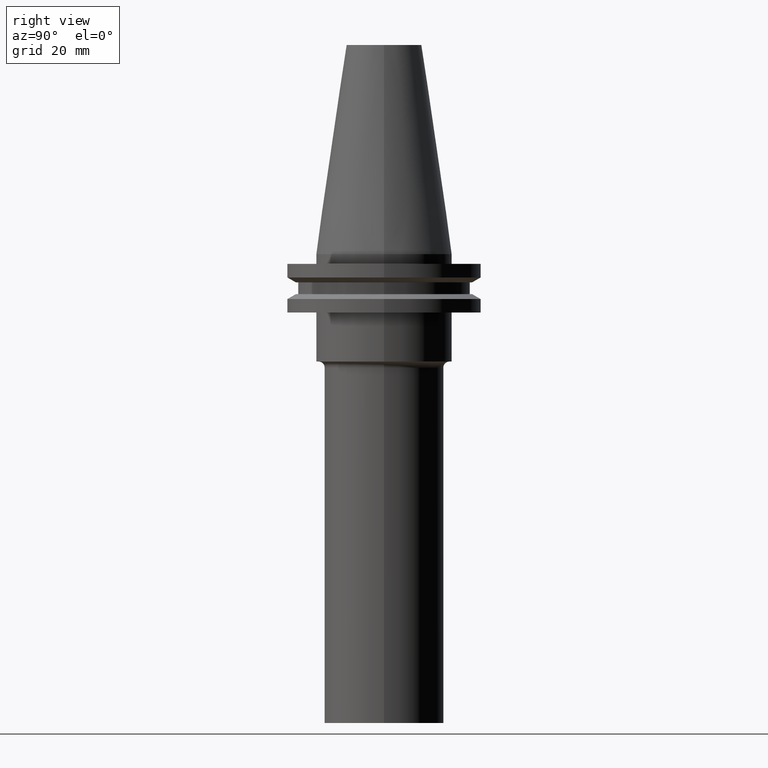
[diagram: clean part render]
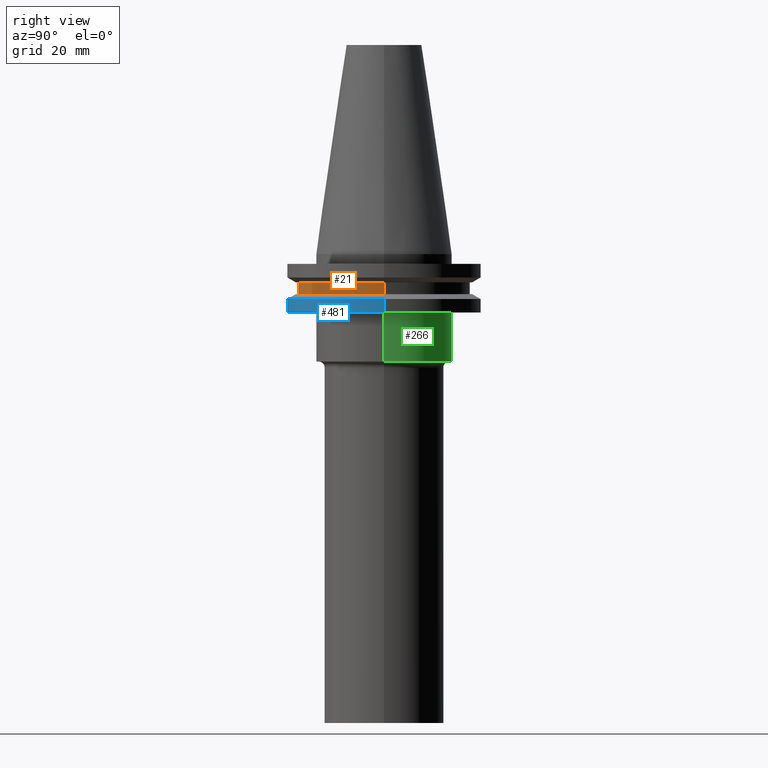
[diagram: same view with three faces highlighted in distinct colors, each labeled with its STEP entity id]
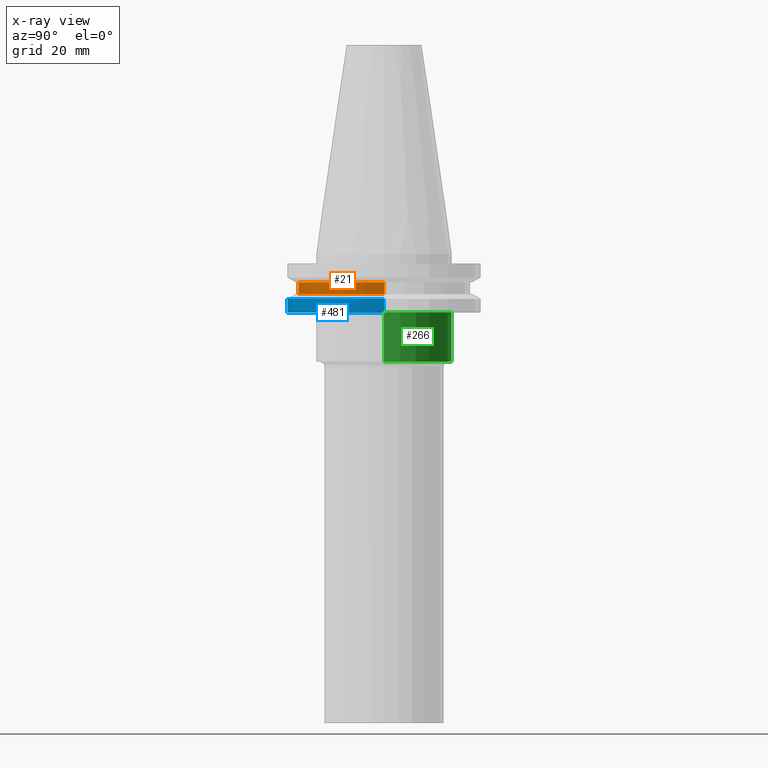
[diagram: x-ray of the same camera — body ghosted, the three highlighted faces saturated]
A machine part, right view with three faces highlighted in distinct colors.
The next image is the same camera in x-ray (body ghosted, the three faces saturated) — at least one of them is partly hidden behind the body in this view.
Their STEP definitions:

[orange] entity #21 — the highlighted cylindrical surface (partial cylindrical patch) has radius 28.18 mm, axis along (-0, -0, 1).
#19 = LINE ( 'NONE', #609, #777 ) ;
#21 = ADVANCED_FACE ( 'NONE', ( #445 ), #665, .T. ) ;
#74 = DIRECTION ( 'NONE',  ( 1.000000000000000000, 0.000000000000000000, 0.000000000000000000 ) ) ;
#89 = VERTEX_POINT ( 'NONE', #442 ) ;
#97 = CARTESIAN_POINT ( 'NONE',  ( 0.000000000000000000, 0.000000000000000000, -13.05499999999999794 ) ) ;
#104 = DIRECTION ( 'NONE',  ( 1.000000000000000000, 0.000000000000000000, 0.000000000000000000 ) ) ;
#127 = CARTESIAN_POINT ( 'NONE',  ( -28.17999999999999972, 3.451054679997241634E-15, -13.05499999999999794 ) ) ;
#178 = CARTESIAN_POINT ( 'NONE',  ( -28.17999999999999972, 3.451054679997241634E-15, 68.25000000000000000 ) ) ;
#201 = AXIS2_PLACEMENT_3D ( 'NONE', #473, #643, #691 ) ;
#208 = ORIENTED_EDGE ( 'NONE', *, *, #296, .F. ) ;
#228 = CIRCLE ( 'NONE', #201, 28.17999999999999972 ) ;
#296 = EDGE_CURVE ( 'NONE', #579, #638, #228, .T. ) ;
#327 = DIRECTION ( 'NONE',  ( -0.000000000000000000, -0.000000000000000000, 1.000000000000000000 ) ) ;
#333 = VERTEX_POINT ( 'NONE', #127 ) ;
#352 = EDGE_CURVE ( 'NONE', #89, #638, #19, .T. ) ;
#360 = CIRCLE ( 'NONE', #590, 28.17999999999999972 ) ;
#362 = AXIS2_PLACEMENT_3D ( 'NONE', #368, #498, #74 ) ;
#368 = CARTESIAN_POINT ( 'NONE',  ( 0.000000000000000000, 0.000000000000000000, 68.25000000000000000 ) ) ;
#380 = ORIENTED_EDGE ( 'NONE', *, *, #444, .T. ) ;
#398 = DIRECTION ( 'NONE',  ( -0.000000000000000000, -0.000000000000000000, 1.000000000000000000 ) ) ;
#408 = ORIENTED_EDGE ( 'NONE', *, *, #720, .F. ) ;
#442 = CARTESIAN_POINT ( 'NONE',  ( 28.17999999999999972, 0.000000000000000000, -13.05499999999999794 ) ) ;
#444 = EDGE_CURVE ( 'NONE', #333, #89, #360, .T. ) ;
#445 = FACE_OUTER_BOUND ( 'NONE', #767, .T. ) ;
#454 = CARTESIAN_POINT ( 'NONE',  ( -28.17999999999999972, 3.451054679997241634E-15, -9.204999999999991189 ) ) ;
#473 = CARTESIAN_POINT ( 'NONE',  ( 0.000000000000000000, 0.000000000000000000, -9.204999999999991189 ) ) ;
#475 = ORIENTED_EDGE ( 'NONE', *, *, #352, .T. ) ;
#498 = DIRECTION ( 'NONE',  ( -0.000000000000000000, -0.000000000000000000, 1.000000000000000000 ) ) ;
#538 = DIRECTION ( 'NONE',  ( -0.000000000000000000, -0.000000000000000000, 1.000000000000000000 ) ) ;
#579 = VERTEX_POINT ( 'NONE', #454 ) ;
#590 = AXIS2_PLACEMENT_3D ( 'NONE', #97, #398, #104 ) ;
#607 = CARTESIAN_POINT ( 'NONE',  ( 28.17999999999999972, 0.000000000000000000, -9.204999999999991189 ) ) ;
#609 = CARTESIAN_POINT ( 'NONE',  ( 28.17999999999999972, 0.000000000000000000, 68.25000000000000000 ) ) ;
#638 = VERTEX_POINT ( 'NONE', #607 ) ;
#643 = DIRECTION ( 'NONE',  ( -0.000000000000000000, -0.000000000000000000, 1.000000000000000000 ) ) ;
#665 = CYLINDRICAL_SURFACE ( 'NONE', #362, 28.17999999999999972 ) ;
#691 = DIRECTION ( 'NONE',  ( 1.000000000000000000, 0.000000000000000000, 0.000000000000000000 ) ) ;
#719 = VECTOR ( 'NONE', #538, 1000.000000000000000 ) ;
#720 = EDGE_CURVE ( 'NONE', #333, #579, #735, .T. ) ;
#735 = LINE ( 'NONE', #178, #719 ) ;
#767 = EDGE_LOOP ( 'NONE', ( #408, #380, #475, #208 ) ) ;
#777 = VECTOR ( 'NONE', #327, 1000.000000000000000 ) ;

[blue] entity #481 — the highlighted cylindrical surface (partial cylindrical patch) has radius 31.75 mm, axis along (-0, -0, 1).
#29 = VECTOR ( 'NONE', #539, 1000.000000000000000 ) ;
#32 = CYLINDRICAL_SURFACE ( 'NONE', #666, 31.75000000000000000 ) ;
#37 = DIRECTION ( 'NONE',  ( 1.000000000000000000, 0.000000000000000000, 0.000000000000000000 ) ) ;
#77 = ORIENTED_EDGE ( 'NONE', *, *, #501, .F. ) ;
#108 = ORIENTED_EDGE ( 'NONE', *, *, #170, .T. ) ;
#137 = VERTEX_POINT ( 'NONE', #341 ) ;
#159 = CARTESIAN_POINT ( 'NONE',  ( 31.74999999999999289, 0.000000000000000000, -19.04999999999999716 ) ) ;
#170 = EDGE_CURVE ( 'NONE', #526, #519, #344, .T. ) ;
#182 = ORIENTED_EDGE ( 'NONE', *, *, #393, .T. ) ;
#233 = VECTOR ( 'NONE', #694, 1000.000000000000000 ) ;
#249 = CARTESIAN_POINT ( 'NONE',  ( 0.000000000000000000, 0.000000000000000000, -19.04999999999999716 ) ) ;
#262 = CARTESIAN_POINT ( 'NONE',  ( -31.74999999999999289, 3.888253587292845687E-15, -19.04999999999999716 ) ) ;
#315 = AXIS2_PLACEMENT_3D ( 'NONE', #249, #549, #493 ) ;
#329 = VERTEX_POINT ( 'NONE', #262 ) ;
#335 = DIRECTION ( 'NONE',  ( -0.000000000000000000, -0.000000000000000000, 1.000000000000000000 ) ) ;
#341 = CARTESIAN_POINT ( 'NONE',  ( -31.75000000000000000, 3.888253587292846476E-15, -14.65472339340266572 ) ) ;
#344 = LINE ( 'NONE', #716, #29 ) ;
#351 = LINE ( 'NONE', #470, #233 ) ;
#367 = CIRCLE ( 'NONE', #611, 31.75000000000000000 ) ;
#383 = CIRCLE ( 'NONE', #315, 31.74999999999999289 ) ;
#393 = EDGE_CURVE ( 'NONE', #329, #526, #383, .T. ) ;
#465 = ORIENTED_EDGE ( 'NONE', *, *, #662, .F. ) ;
#470 = CARTESIAN_POINT ( 'NONE',  ( -31.75000000000000000, 3.888253587292846476E-15, 68.25000000000000000 ) ) ;
#474 = CARTESIAN_POINT ( 'NONE',  ( 0.000000000000000000, 0.000000000000000000, 68.25000000000000000 ) ) ;
#481 = ADVANCED_FACE ( 'NONE', ( #531 ), #32, .T. ) ;
#493 = DIRECTION ( 'NONE',  ( 1.000000000000000000, 0.000000000000000000, 0.000000000000000000 ) ) ;
#501 = EDGE_CURVE ( 'NONE', #329, #137, #351, .T. ) ;
#519 = VERTEX_POINT ( 'NONE', #766 ) ;
#526 = VERTEX_POINT ( 'NONE', #159 ) ;
#531 = FACE_OUTER_BOUND ( 'NONE', #567, .T. ) ;
#539 = DIRECTION ( 'NONE',  ( -0.000000000000000000, -0.000000000000000000, 1.000000000000000000 ) ) ;
#549 = DIRECTION ( 'NONE',  ( -0.000000000000000000, -0.000000000000000000, 1.000000000000000000 ) ) ;
#567 = EDGE_LOOP ( 'NONE', ( #77, #182, #108, #465 ) ) ;
#588 = DIRECTION ( 'NONE',  ( 1.000000000000000000, 0.000000000000000000, 0.000000000000000000 ) ) ;
#610 = CARTESIAN_POINT ( 'NONE',  ( 0.000000000000000000, 0.000000000000000000, -14.65472339340266572 ) ) ;
#611 = AXIS2_PLACEMENT_3D ( 'NONE', #610, #667, #588 ) ;
#662 = EDGE_CURVE ( 'NONE', #137, #519, #367, .T. ) ;
#666 = AXIS2_PLACEMENT_3D ( 'NONE', #474, #335, #37 ) ;
#667 = DIRECTION ( 'NONE',  ( -0.000000000000000000, -0.000000000000000000, 1.000000000000000000 ) ) ;
#694 = DIRECTION ( 'NONE',  ( -0.000000000000000000, -0.000000000000000000, 1.000000000000000000 ) ) ;
#716 = CARTESIAN_POINT ( 'NONE',  ( 31.75000000000000000, 0.000000000000000000, 68.25000000000000000 ) ) ;
#766 = CARTESIAN_POINT ( 'NONE',  ( 31.75000000000000000, 0.000000000000000000, -14.65472339340266572 ) ) ;

[green] entity #266 — the highlighted cylindrical surface (partial cylindrical patch) has radius 22.225 mm, axis along (-0, -0, 1).
#4 = DIRECTION ( 'NONE',  ( -0.000000000000000000, -0.000000000000000000, 1.000000000000000000 ) ) ;
#31 = LINE ( 'NONE', #334, #58 ) ;
#44 = CARTESIAN_POINT ( 'NONE',  ( 22.22500000000000142, 0.000000000000000000, -35.04999999999999716 ) ) ;
#58 = VECTOR ( 'NONE', #267, 1000.000000000000000 ) ;
#67 = CARTESIAN_POINT ( 'NONE',  ( 0.000000000000000000, 0.000000000000000000, -35.04999999999999716 ) ) ;
#78 = CARTESIAN_POINT ( 'NONE',  ( -22.22500000000000142, 2.721777511104992849E-15, -35.04999999999999716 ) ) ;
#110 = EDGE_CURVE ( 'NONE', #510, #678, #31, .T. ) ;
#117 = CARTESIAN_POINT ( 'NONE',  ( 0.000000000000000000, 0.000000000000000000, -19.04999999999999716 ) ) ;
#145 = DIRECTION ( 'NONE',  ( 1.000000000000000000, 0.000000000000000000, 0.000000000000000000 ) ) ;
#163 = EDGE_CURVE ( 'NONE', #418, #714, #472, .T. ) ;
#166 = ORIENTED_EDGE ( 'NONE', *, *, #110, .F. ) ;
#185 = AXIS2_PLACEMENT_3D ( 'NONE', #721, #236, #366 ) ;
#202 = EDGE_LOOP ( 'NONE', ( #704, #212, #281, #166 ) ) ;
#212 = ORIENTED_EDGE ( 'NONE', *, *, #163, .T. ) ;
#236 = DIRECTION ( 'NONE',  ( -0.000000000000000000, -0.000000000000000000, 1.000000000000000000 ) ) ;
#254 = DIRECTION ( 'NONE',  ( -0.000000000000000000, -0.000000000000000000, 1.000000000000000000 ) ) ;
#266 = ADVANCED_FACE ( 'NONE', ( #306 ), #664, .T. ) ;
#267 = DIRECTION ( 'NONE',  ( -0.000000000000000000, -0.000000000000000000, 1.000000000000000000 ) ) ;
#281 = ORIENTED_EDGE ( 'NONE', *, *, #746, .F. ) ;
#298 = AXIS2_PLACEMENT_3D ( 'NONE', #117, #254, #145 ) ;
#306 = FACE_OUTER_BOUND ( 'NONE', #202, .T. ) ;
#310 = CARTESIAN_POINT ( 'NONE',  ( -22.22500000000000142, 2.721777511104992849E-15, -19.04999999999999716 ) ) ;
#312 = AXIS2_PLACEMENT_3D ( 'NONE', #67, #4, #723 ) ;
#334 = CARTESIAN_POINT ( 'NONE',  ( 22.22500000000000142, 0.000000000000000000, 68.25000000000000000 ) ) ;
#337 = VECTOR ( 'NONE', #413, 1000.000000000000000 ) ;
#366 = DIRECTION ( 'NONE',  ( 1.000000000000000000, 0.000000000000000000, 0.000000000000000000 ) ) ;
#413 = DIRECTION ( 'NONE',  ( -0.000000000000000000, -0.000000000000000000, 1.000000000000000000 ) ) ;
#418 = VERTEX_POINT ( 'NONE', #78 ) ;
#472 = LINE ( 'NONE', #584, #337 ) ;
#510 = VERTEX_POINT ( 'NONE', #44 ) ;
#533 = CARTESIAN_POINT ( 'NONE',  ( 22.22500000000000142, 0.000000000000000000, -19.04999999999999716 ) ) ;
#584 = CARTESIAN_POINT ( 'NONE',  ( -22.22500000000000142, 2.721777511104992849E-15, 68.25000000000000000 ) ) ;
#606 = EDGE_CURVE ( 'NONE', #510, #418, #660, .T. ) ;
#647 = CIRCLE ( 'NONE', #298, 22.22500000000000142 ) ;
#660 = CIRCLE ( 'NONE', #312, 22.22500000000000142 ) ;
#664 = CYLINDRICAL_SURFACE ( 'NONE', #185, 22.22500000000000142 ) ;
#678 = VERTEX_POINT ( 'NONE', #533 ) ;
#704 = ORIENTED_EDGE ( 'NONE', *, *, #606, .T. ) ;
#714 = VERTEX_POINT ( 'NONE', #310 ) ;
#721 = CARTESIAN_POINT ( 'NONE',  ( 0.000000000000000000, 0.000000000000000000, 68.25000000000000000 ) ) ;
#723 = DIRECTION ( 'NONE',  ( 1.000000000000000000, 0.000000000000000000, 0.000000000000000000 ) ) ;
#746 = EDGE_CURVE ( 'NONE', #678, #714, #647, .T. ) ;